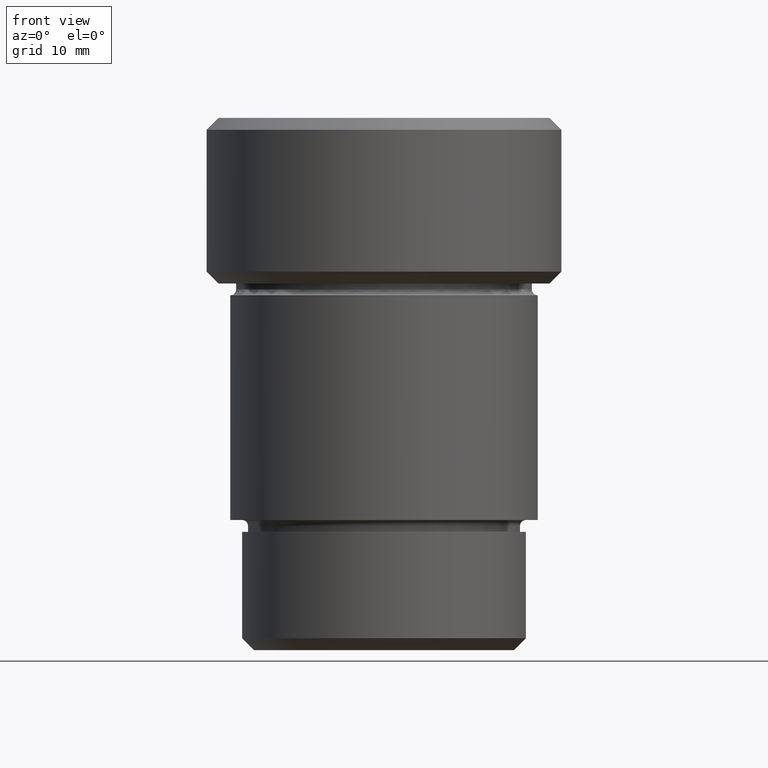
[diagram: clean part render]
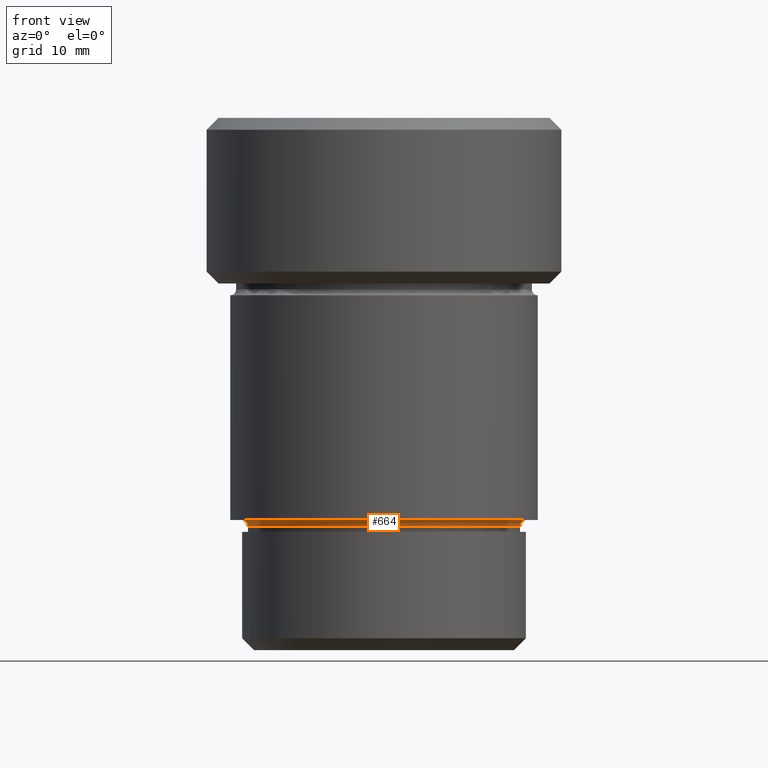
[diagram: same view with one face highlighted and labeled with its STEP entity id]
A machine part, front view. The second image highlights one B-rep face of the part: STEP entity #664.
In plain terms, the highlighted toroidal blend (fillet) surface has major radius 12 mm and minor (blend) radius 0.5 mm.
Its self-contained STEP definition (entity closure, byte-faithful):
#27 = AXIS2_PLACEMENT_3D ( 'NONE', #655, #168, #707 ) ;
#41 = DIRECTION ( 'NONE',  ( -1.000000000000000000, 0.000000000000000000, 0.000000000000000000 ) ) ;
#64 = VERTEX_POINT ( 'NONE', #432 ) ;
#67 = CIRCLE ( 'NONE', #293, 0.5000000000000004441 ) ;
#80 = CIRCLE ( 'NONE', #449, 0.5000000000000004441 ) ;
#97 = DIRECTION ( 'NONE',  ( -1.000000000000000000, -1.224646799147353454E-16, 0.000000000000000000 ) ) ;
#107 = EDGE_CURVE ( 'NONE', #507, #447, #121, .T. ) ;
#110 = DIRECTION ( 'NONE',  ( 0.000000000000000000, 0.000000000000000000, -1.000000000000000000 ) ) ;
#121 = CIRCLE ( 'NONE', #569, 11.50000000000000355 ) ;
#168 = DIRECTION ( 'NONE',  ( -0.000000000000000000, -0.000000000000000000, 1.000000000000000000 ) ) ;
#169 = EDGE_CURVE ( 'NONE', #447, #185, #80, .T. ) ;
#185 = VERTEX_POINT ( 'NONE', #368 ) ;
#195 = CARTESIAN_POINT ( 'NONE',  ( -12.00000000000000355, 0.000000000000000000, -34.50000000000000000 ) ) ;
#201 = TOROIDAL_SURFACE ( 'NONE', #401, 12.00000000000000355, 0.5000000000000000000 ) ;
#207 = ORIENTED_EDGE ( 'NONE', *, *, #612, .F. ) ;
#247 = DIRECTION ( 'NONE',  ( -1.000000000000000000, 0.000000000000000000, 0.000000000000000000 ) ) ;
#293 = AXIS2_PLACEMENT_3D ( 'NONE', #629, #389, #97 ) ;
#320 = ORIENTED_EDGE ( 'NONE', *, *, #357, .T. ) ;
#345 = DIRECTION ( 'NONE',  ( 0.000000000000000000, 0.000000000000000000, -1.000000000000000000 ) ) ;
#357 = EDGE_CURVE ( 'NONE', #507, #64, #67, .T. ) ;
#361 = FACE_OUTER_BOUND ( 'NONE', #425, .T. ) ;
#365 = DIRECTION ( 'NONE',  ( 0.000000000000000000, 0.000000000000000000, -1.000000000000000000 ) ) ;
#368 = CARTESIAN_POINT ( 'NONE',  ( -12.00000000000000355, 0.000000000000000000, -34.00000000000000000 ) ) ;
#369 = CIRCLE ( 'NONE', #27, 12.00000000000000355 ) ;
#389 = DIRECTION ( 'NONE',  ( -1.224646799147353207E-16, 1.000000000000000000, 0.000000000000000000 ) ) ;
#401 = AXIS2_PLACEMENT_3D ( 'NONE', #791, #365, #247 ) ;
#425 = EDGE_LOOP ( 'NONE', ( #760, #320, #207, #660 ) ) ;
#430 = CARTESIAN_POINT ( 'NONE',  ( -11.50000000000000355, 1.408343819019456570E-15, -34.50000000000000000 ) ) ;
#432 = CARTESIAN_POINT ( 'NONE',  ( 12.00000000000000355, 1.469576158976824342E-15, -34.00000000000000000 ) ) ;
#447 = VERTEX_POINT ( 'NONE', #430 ) ;
#449 = AXIS2_PLACEMENT_3D ( 'NONE', #195, #714, #110 ) ;
#480 = CARTESIAN_POINT ( 'NONE',  ( 11.50000000000000355, 0.000000000000000000, -34.50000000000000000 ) ) ;
#507 = VERTEX_POINT ( 'NONE', #480 ) ;
#518 = CARTESIAN_POINT ( 'NONE',  ( 0.000000000000000000, 0.000000000000000000, -34.50000000000000000 ) ) ;
#569 = AXIS2_PLACEMENT_3D ( 'NONE', #518, #345, #41 ) ;
#612 = EDGE_CURVE ( 'NONE', #185, #64, #369, .T. ) ;
#629 = CARTESIAN_POINT ( 'NONE',  ( 12.00000000000000355, 1.469576158976824342E-15, -34.50000000000000000 ) ) ;
#655 = CARTESIAN_POINT ( 'NONE',  ( 0.000000000000000000, 0.000000000000000000, -34.00000000000000000 ) ) ;
#660 = ORIENTED_EDGE ( 'NONE', *, *, #169, .F. ) ;
#664 = ADVANCED_FACE ( 'NONE', ( #361 ), #201, .F. ) ;
#707 = DIRECTION ( 'NONE',  ( -1.000000000000000000, 0.000000000000000000, 0.000000000000000000 ) ) ;
#714 = DIRECTION ( 'NONE',  ( -0.000000000000000000, -1.000000000000000000, -0.000000000000000000 ) ) ;
#760 = ORIENTED_EDGE ( 'NONE', *, *, #107, .F. ) ;
#791 = CARTESIAN_POINT ( 'NONE',  ( 0.000000000000000000, 0.000000000000000000, -34.50000000000000000 ) ) ;